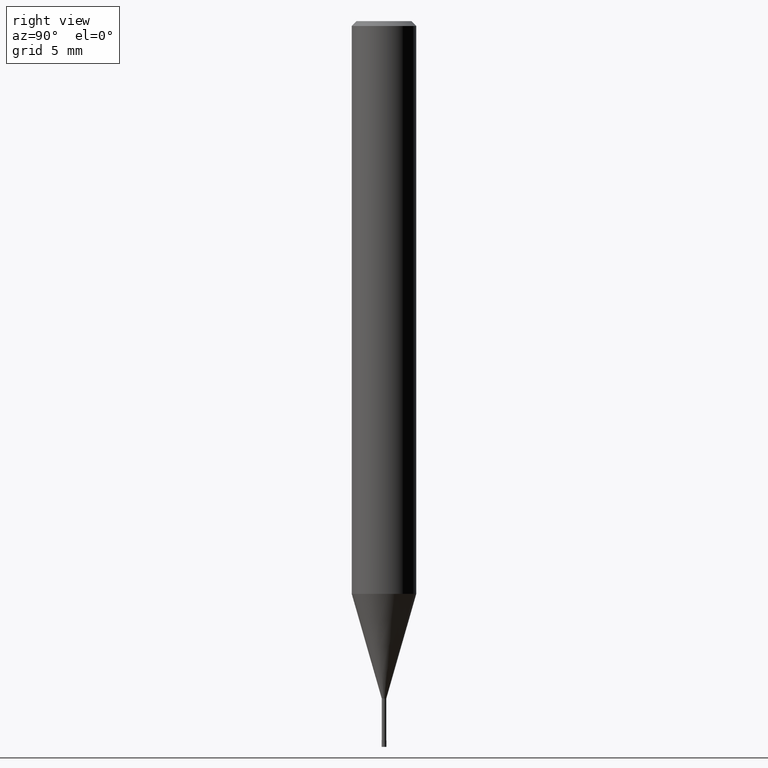
[diagram: clean part render]
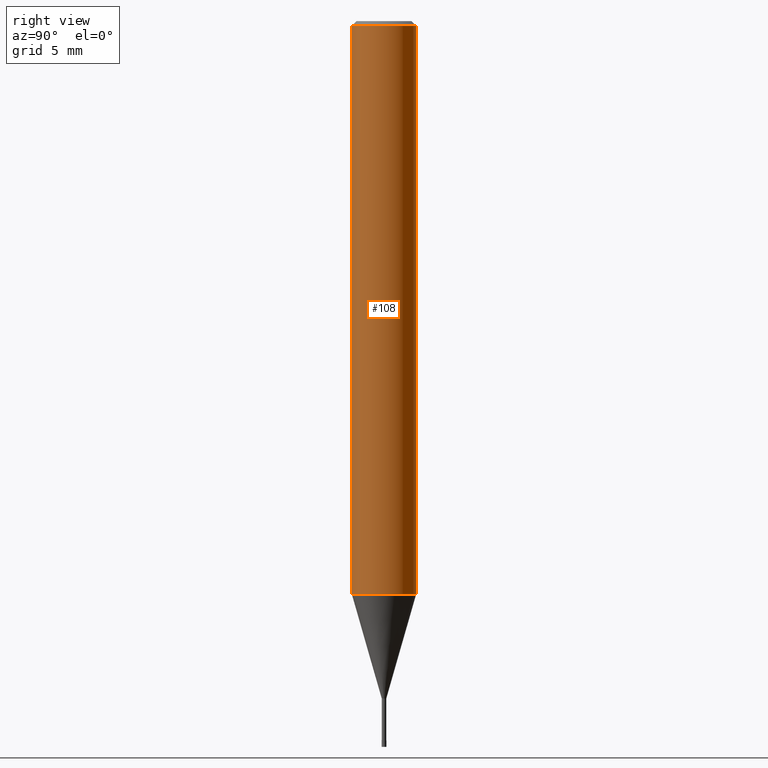
[diagram: same view with one face highlighted and labeled with its STEP entity id]
A machine part, right view. The second image highlights one B-rep face of the part: STEP entity #108.
In plain terms, the highlighted cylindrical surface (edge-blend (fillet) strip) has radius 2 mm, axis along (-0, -0, 1).
Its self-contained STEP definition (entity closure, byte-faithful):
#108=ADVANCED_FACE('',(#249),#250,.T.);
#112=VERTEX_POINT('',#254);
#114=VERTEX_POINT('',#256);
#118=EDGE_CURVE('',#112,#202,#260,.T.);
#138=EDGE_CURVE('',#168,#114,#284,.T.);
#168=VERTEX_POINT('',#318);
#170=EDGE_CURVE('',#202,#168,#320,.T.);
#180=EDGE_CURVE('',#112,#114,#330,.T.);
#202=VERTEX_POINT('',#354);
#249=FACE_OUTER_BOUND('',#394,.T.);
#250=CYLINDRICAL_SURFACE('',#395,2.0);
#254=CARTESIAN_POINT('',(0.0,2.0,-0.299999999999997));
#256=CARTESIAN_POINT('',(2.44921270764475E-016,-2.0,-0.299999999999997));
#260=LINE('',#407,#408);
#284=LINE('',#438,#439);
#318=CARTESIAN_POINT('',(2.44921270764475E-016,-2.0,-35.513));
#320=CIRCLE('',#482,2.0);
#330=CIRCLE('',#497,2.0);
#354=CARTESIAN_POINT('',(0.0,2.0,-35.513));
#394=EDGE_LOOP('',(#575,#576,#577,#578));
#395=AXIS2_PLACEMENT_3D('',#579,#580,#581);
#407=CARTESIAN_POINT('',(-2.44921270764475E-016,2.0,-17.9065));
#408=VECTOR('',#585,1.0);
#438=CARTESIAN_POINT('',(2.44921270764475E-016,-2.0,-17.9065));
#439=VECTOR('',#626,1.0);
#482=AXIS2_PLACEMENT_3D('',#664,#665,#666);
#497=AXIS2_PLACEMENT_3D('',#679,#680,#681);
#575=ORIENTED_EDGE('',*,*,#118,.F.);
#576=ORIENTED_EDGE('',*,*,#180,.T.);
#577=ORIENTED_EDGE('',*,*,#138,.F.);
#578=ORIENTED_EDGE('',*,*,#170,.F.);
#579=CARTESIAN_POINT('',(0.0,0.0,-17.9065));
#580=DIRECTION('',(-0.0,-0.0,1.0));
#581=DIRECTION('',(0.0,1.0,0.0));
#585=DIRECTION('',(0.0,0.0,-1.0));
#626=DIRECTION('',(-0.0,-0.0,1.0));
#664=CARTESIAN_POINT('',(0.0,0.0,-35.513));
#665=DIRECTION('',(0.0,0.0,-1.0));
#666=DIRECTION('',(0.0,1.0,0.0));
#679=CARTESIAN_POINT('',(0.0,0.0,-0.299999999999997));
#680=DIRECTION('',(0.0,0.0,-1.0));
#681=DIRECTION('',(0.0,1.0,0.0));